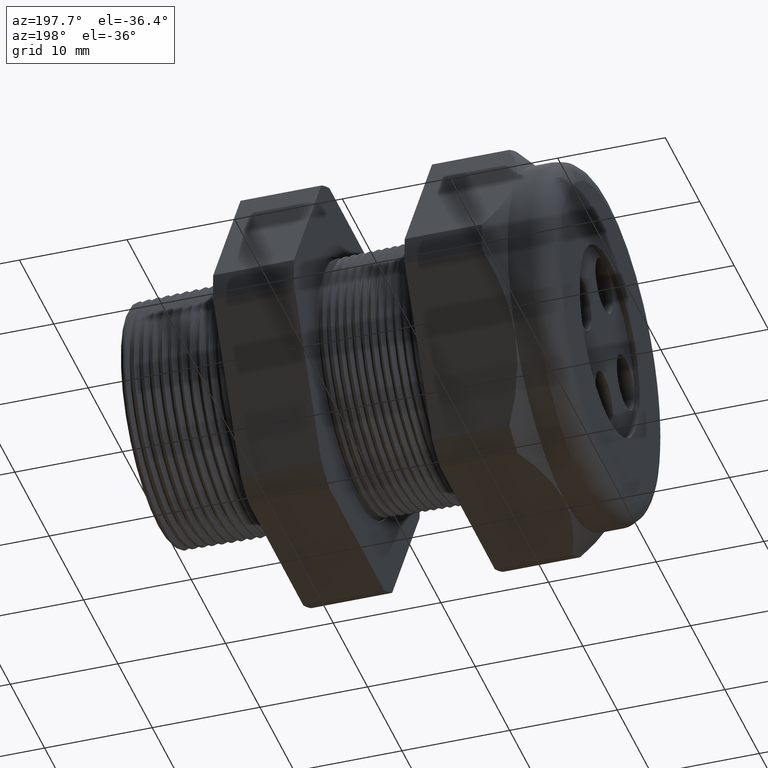
[diagram: clean part render]
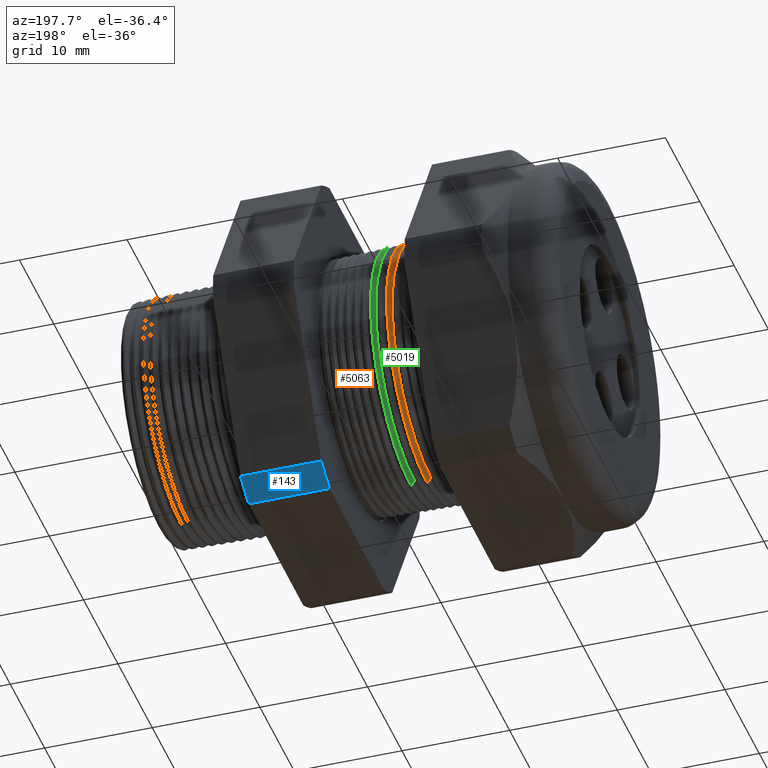
[diagram: same view with three faces highlighted in distinct colors, each labeled with its STEP entity id]
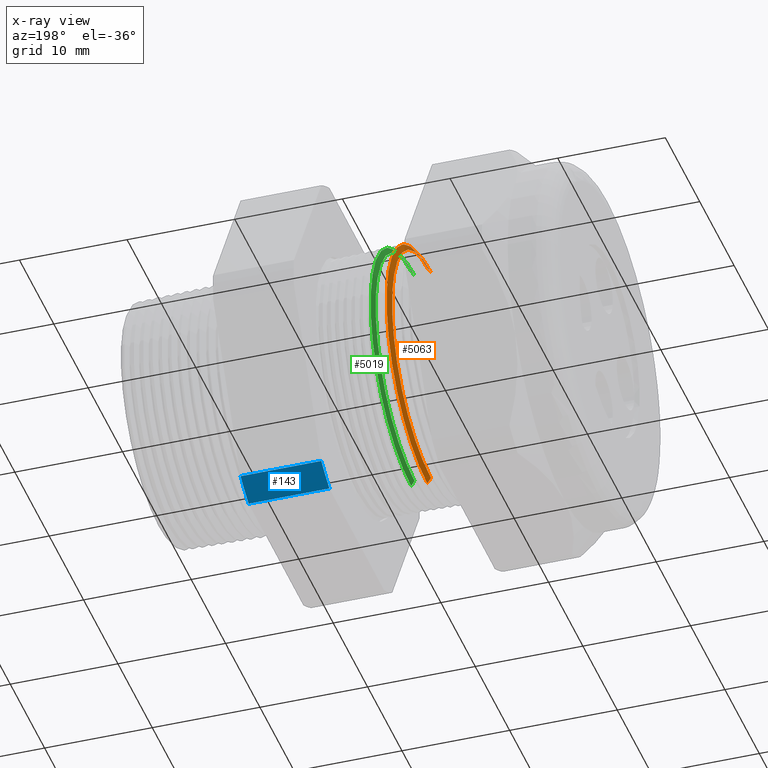
[diagram: x-ray of the same camera — body ghosted, the three highlighted faces saturated]
A machine part, auxiliary view with three faces highlighted in distinct colors.
The next image is the same camera in x-ray (body ghosted, the three faces saturated) — at least one of them is partly hidden behind the body in this view.
Their STEP definitions:

[orange] entity #5063 — the highlighted conical surface has half-angle 58.5 deg.
#3387 = CIRCLE ( 'NONE', #3392, 0.4446307351718083400 ) ;
#3388 = DIRECTION ( 'NONE',  ( 0.0000000000000000000, 0.0000000000000000000, -1.000000000000000000 ) ) ;
#3389 = DIRECTION ( 'NONE',  ( 1.000000000000000000, 0.0000000000000000000, 0.0000000000000000000 ) ) ;
#3390 = CARTESIAN_POINT ( 'NONE',  ( -0.8765405736958171700, 0.0000000000000000000, 0.0000000000000000000 ) ) ;
#3391 = AXIS2_PLACEMENT_3D ( 'NONE', #3390, #3389, #3388 ) ;
#3392 = AXIS2_PLACEMENT_3D ( 'NONE', #3448, #3447, #3446 ) ;
#3393 = CONICAL_SURFACE ( 'NONE', #3391, 0.4446307351718083400, 1.021017612416699200 ) ;
#3394 = FACE_OUTER_BOUND ( 'NONE', #5064, .T. ) ;
#3439 = CARTESIAN_POINT ( 'NONE',  ( -0.8633525379665555300, 0.0000000000000000000, 0.4661516535265203800 ) ) ;
#3440 = DIRECTION ( 'NONE',  ( 0.5224985647159348100, 1.044183048100722500E-016, 0.8526401643541007300 ) ) ;
#3441 = VECTOR ( 'NONE', #3440, 39.37007874015748900 ) ;
#3442 = CARTESIAN_POINT ( 'NONE',  ( -0.8765405736958171700, 5.445156066306895900E-017, 0.4446307351718083400 ) ) ;
#3443 = LINE ( 'NONE', #3442, #3441 ) ;
#3444 = CARTESIAN_POINT ( 'NONE',  ( -0.8765405736958171700, 0.0000000000000000000, 0.4446307351718083400 ) ) ;
#3445 = CARTESIAN_POINT ( 'NONE',  ( -0.8765405736958171700, 5.580979396460794700E-017, -0.4446307351718083400 ) ) ;
#3446 = DIRECTION ( 'NONE',  ( 0.0000000000000000000, 0.0000000000000000000, -1.000000000000000000 ) ) ;
#3447 = DIRECTION ( 'NONE',  ( 1.000000000000000000, 0.0000000000000000000, 0.0000000000000000000 ) ) ;
#3448 = CARTESIAN_POINT ( 'NONE',  ( -0.8765405736958171700, 0.0000000000000000000, 0.0000000000000000000 ) ) ;
#3513 = DIRECTION ( 'NONE',  ( 0.5224985647159348100, 0.0000000000000000000, -0.8526401643541007300 ) ) ;
#3514 = VECTOR ( 'NONE', #3513, 39.37007874015748900 ) ;
#3515 = CARTESIAN_POINT ( 'NONE',  ( -0.8765405736958171700, 0.0000000000000000000, -0.4446307351718083400 ) ) ;
#3516 = LINE ( 'NONE', #3515, #3514 ) ;
#3517 = CARTESIAN_POINT ( 'NONE',  ( -0.8633525379665555300, 5.708711304084992300E-017, -0.4661516535265203800 ) ) ;
#3518 = DIRECTION ( 'NONE',  ( 0.0000000000000000000, 0.0000000000000000000, -1.000000000000000000 ) ) ;
#3519 = DIRECTION ( 'NONE',  ( -1.000000000000000000, 0.0000000000000000000, 0.0000000000000000000 ) ) ;
#3520 = CARTESIAN_POINT ( 'NONE',  ( -0.8633525379665555300, 0.0000000000000000000, 0.0000000000000000000 ) ) ;
#3521 = AXIS2_PLACEMENT_3D ( 'NONE', #3520, #3519, #3518 ) ;
#3522 = CIRCLE ( 'NONE', #3521, 0.4661516535265203300 ) ;
#5063 = ADVANCED_FACE ( 'NONE', ( #3394 ), #3393, .T. ) ;
#5064 = EDGE_LOOP ( 'NONE', ( #5065, #5069, #5129, #5132 ) ) ;
#5065 = ORIENTED_EDGE ( 'NONE', *, *, #5066, .T. ) ;
#5066 = EDGE_CURVE ( 'NONE', #5067, #5068, #3387, .T. ) ;
#5067 = VERTEX_POINT ( 'NONE', #3445 ) ;
#5068 = VERTEX_POINT ( 'NONE', #3444 ) ;
#5069 = ORIENTED_EDGE ( 'NONE', *, *, #5070, .T. ) ;
#5070 = EDGE_CURVE ( 'NONE', #5068, #5071, #3443, .T. ) ;
#5071 = VERTEX_POINT ( 'NONE', #3439 ) ;
#5129 = ORIENTED_EDGE ( 'NONE', *, *, #5130, .T. ) ;
#5130 = EDGE_CURVE ( 'NONE', #5071, #5131, #3522, .T. ) ;
#5131 = VERTEX_POINT ( 'NONE', #3517 ) ;
#5132 = ORIENTED_EDGE ( 'NONE', *, *, #5133, .F. ) ;
#5133 = EDGE_CURVE ( 'NONE', #5067, #5131, #3516, .T. ) ;

[blue] entity #143 — the highlighted cylindrical surface (partial cylindrical patch) has radius 18.3261 mm, axis along (-1, 0, 0).
#1 = VERTEX_POINT ( 'NONE', #912 ) ;
#81 = ORIENTED_EDGE ( 'NONE', *, *, #408, .F. ) ;
#85 = EDGE_CURVE ( 'NONE', #5768, #172, #1080, .T. ) ;
#86 = ORIENTED_EDGE ( 'NONE', *, *, #85, .F. ) ;
#87 = ORIENTED_EDGE ( 'NONE', *, *, #168, .F. ) ;
#88 = ORIENTED_EDGE ( 'NONE', *, *, #120, .T. ) ;
#90 = VERTEX_POINT ( 'NONE', #1076 ) ;
#91 = EDGE_LOOP ( 'NONE', ( #88, #87, #86, #81 ) ) ;
#120 = EDGE_CURVE ( 'NONE', #1, #90, #1106, .T. ) ;
#143 = ADVANCED_FACE ( 'NONE', ( #1131 ), #1130, .T. ) ;
#168 = EDGE_CURVE ( 'NONE', #172, #90, #1202, .T. ) ;
#172 = VERTEX_POINT ( 'NONE', #1198 ) ;
#408 = EDGE_CURVE ( 'NONE', #1, #5768, #1645, .T. ) ;
#912 = CARTESIAN_POINT ( 'NONE',  ( -0.3100000000000000000, 0.3131489262315934100, -0.6500000000000001300 ) ) ;
#1076 = CARTESIAN_POINT ( 'NONE',  ( -0.6052755905511810800, 0.3131489262315934100, -0.6500000000000001300 ) ) ;
#1077 = DIRECTION ( 'NONE',  ( -1.000000000000000000, 0.0000000000000000000, 0.0000000000000000000 ) ) ;
#1078 = VECTOR ( 'NONE', #1077, 39.37007874015748100 ) ;
#1079 = CARTESIAN_POINT ( 'NONE',  ( 0.1200000000000000900, 0.4063420493440886800, -0.5961949252843790100 ) ) ;
#1080 = LINE ( 'NONE', #1079, #1078 ) ;
#1103 = DIRECTION ( 'NONE',  ( -1.000000000000000000, 0.0000000000000000000, 0.0000000000000000000 ) ) ;
#1104 = VECTOR ( 'NONE', #1103, 39.37007874015748100 ) ;
#1105 = CARTESIAN_POINT ( 'NONE',  ( 0.1200000000000000900, 0.3131489262315934100, -0.6500000000000001300 ) ) ;
#1106 = LINE ( 'NONE', #1105, #1104 ) ;
#1127 = DIRECTION ( 'NONE',  ( 0.0000000000000000000, 0.0000000000000000000, 1.000000000000000000 ) ) ;
#1128 = DIRECTION ( 'NONE',  ( -1.000000000000000000, 0.0000000000000000000, 0.0000000000000000000 ) ) ;
#1129 = AXIS2_PLACEMENT_3D ( 'NONE', #1136, #1128, #1127 ) ;
#1130 = CYLINDRICAL_SURFACE ( 'NONE', #1129, 0.7215000000000000300 ) ;
#1131 = FACE_OUTER_BOUND ( 'NONE', #91, .T. ) ;
#1136 = CARTESIAN_POINT ( 'NONE',  ( 0.1200000000000000900, 0.0000000000000000000, 0.0000000000000000000 ) ) ;
#1198 = CARTESIAN_POINT ( 'NONE',  ( -0.6052755905511809600, 0.4063420493440886800, -0.5961949252843791200 ) ) ;
#1199 = DIRECTION ( 'NONE',  ( 0.0000000000000000000, 0.0000000000000000000, 1.000000000000000000 ) ) ;
#1200 = DIRECTION ( 'NONE',  ( -1.000000000000000000, 0.0000000000000000000, 0.0000000000000000000 ) ) ;
#1201 = AXIS2_PLACEMENT_3D ( 'NONE', #1217, #1200, #1199 ) ;
#1202 = CIRCLE ( 'NONE', #1201, 0.7215000000000000300 ) ;
#1217 = CARTESIAN_POINT ( 'NONE',  ( -0.6052755905511810800, 0.0000000000000000000, 0.0000000000000000000 ) ) ;
#1642 = DIRECTION ( 'NONE',  ( 0.0000000000000000000, 0.0000000000000000000, -1.000000000000000000 ) ) ;
#1643 = DIRECTION ( 'NONE',  ( 1.000000000000000000, 0.0000000000000000000, 0.0000000000000000000 ) ) ;
#1644 = AXIS2_PLACEMENT_3D ( 'NONE', #1651, #1643, #1642 ) ;
#1645 = CIRCLE ( 'NONE', #1644, 0.7215000000000000300 ) ;
#1651 = CARTESIAN_POINT ( 'NONE',  ( -0.3100000000000000000, 0.0000000000000000000, 0.0000000000000000000 ) ) ;
#4543 = CARTESIAN_POINT ( 'NONE',  ( -0.3100000000000000000, 0.4063420493440886800, -0.5961949252843790100 ) ) ;
#5768 = VERTEX_POINT ( 'NONE', #4543 ) ;

[green] entity #5019 — the highlighted conical surface has half-angle 58.5 deg.
#3291 = CONICAL_SURFACE ( 'NONE', #3352, 0.4446307351718083400, 1.021017612416699200 ) ;
#3292 = CARTESIAN_POINT ( 'NONE',  ( -0.8165405736958172300, 0.0000000000000000000, 0.0000000000000000000 ) ) ;
#3293 = FACE_OUTER_BOUND ( 'NONE', #5020, .T. ) ;
#3328 = DIRECTION ( 'NONE',  ( 0.5224985647159348100, 0.0000000000000000000, -0.8526401643541007300 ) ) ;
#3329 = VECTOR ( 'NONE', #3328, 39.37007874015748900 ) ;
#3330 = CARTESIAN_POINT ( 'NONE',  ( -0.8165405736958172300, 0.0000000000000000000, -0.4446307351718083400 ) ) ;
#3331 = LINE ( 'NONE', #3330, #3329 ) ;
#3332 = CARTESIAN_POINT ( 'NONE',  ( -0.8043001372766740400, 5.689774081997992500E-017, -0.4646053119935833500 ) ) ;
#3333 = DIRECTION ( 'NONE',  ( 0.0000000000000000000, 0.0000000000000000000, -1.000000000000000000 ) ) ;
#3334 = DIRECTION ( 'NONE',  ( -1.000000000000000000, 0.0000000000000000000, 0.0000000000000000000 ) ) ;
#3335 = CARTESIAN_POINT ( 'NONE',  ( -0.8043001372766740400, 0.0000000000000000000, 0.0000000000000000000 ) ) ;
#3336 = AXIS2_PLACEMENT_3D ( 'NONE', #3335, #3334, #3333 ) ;
#3337 = CIRCLE ( 'NONE', #3336, 0.4646053119935832900 ) ;
#3338 = CARTESIAN_POINT ( 'NONE',  ( -0.8043001372766740400, 0.0000000000000000000, 0.4646053119935833500 ) ) ;
#3339 = DIRECTION ( 'NONE',  ( 0.5224985647159348100, 1.044183048100722500E-016, 0.8526401643541007300 ) ) ;
#3340 = VECTOR ( 'NONE', #3339, 39.37007874015748900 ) ;
#3341 = CARTESIAN_POINT ( 'NONE',  ( -0.8165405736958172300, 5.445156066306895900E-017, 0.4446307351718083400 ) ) ;
#3342 = LINE ( 'NONE', #3341, #3340 ) ;
#3343 = CARTESIAN_POINT ( 'NONE',  ( -0.8165405736958172300, 0.0000000000000000000, 0.4446307351718083400 ) ) ;
#3344 = CARTESIAN_POINT ( 'NONE',  ( -0.8165405736958172300, 5.571220089116329200E-017, -0.4446307351718083400 ) ) ;
#3345 = DIRECTION ( 'NONE',  ( 0.0000000000000000000, 0.0000000000000000000, -1.000000000000000000 ) ) ;
#3346 = DIRECTION ( 'NONE',  ( 1.000000000000000000, 0.0000000000000000000, 0.0000000000000000000 ) ) ;
#3347 = CARTESIAN_POINT ( 'NONE',  ( -0.8165405736958172300, 0.0000000000000000000, 0.0000000000000000000 ) ) ;
#3348 = AXIS2_PLACEMENT_3D ( 'NONE', #3347, #3346, #3345 ) ;
#3349 = CIRCLE ( 'NONE', #3348, 0.4446307351718083400 ) ;
#3350 = DIRECTION ( 'NONE',  ( 0.0000000000000000000, 0.0000000000000000000, -1.000000000000000000 ) ) ;
#3351 = DIRECTION ( 'NONE',  ( 1.000000000000000000, 0.0000000000000000000, 0.0000000000000000000 ) ) ;
#3352 = AXIS2_PLACEMENT_3D ( 'NONE', #3292, #3351, #3350 ) ;
#5019 = ADVANCED_FACE ( 'NONE', ( #3293 ), #3291, .T. ) ;
#5020 = EDGE_LOOP ( 'NONE', ( #5021, #5025, #5028, #5031 ) ) ;
#5021 = ORIENTED_EDGE ( 'NONE', *, *, #5022, .T. ) ;
#5022 = EDGE_CURVE ( 'NONE', #5023, #5024, #3349, .T. ) ;
#5023 = VERTEX_POINT ( 'NONE', #3344 ) ;
#5024 = VERTEX_POINT ( 'NONE', #3343 ) ;
#5025 = ORIENTED_EDGE ( 'NONE', *, *, #5026, .T. ) ;
#5026 = EDGE_CURVE ( 'NONE', #5024, #5027, #3342, .T. ) ;
#5027 = VERTEX_POINT ( 'NONE', #3338 ) ;
#5028 = ORIENTED_EDGE ( 'NONE', *, *, #5029, .T. ) ;
#5029 = EDGE_CURVE ( 'NONE', #5027, #5030, #3337, .T. ) ;
#5030 = VERTEX_POINT ( 'NONE', #3332 ) ;
#5031 = ORIENTED_EDGE ( 'NONE', *, *, #5032, .F. ) ;
#5032 = EDGE_CURVE ( 'NONE', #5023, #5030, #3331, .T. ) ;